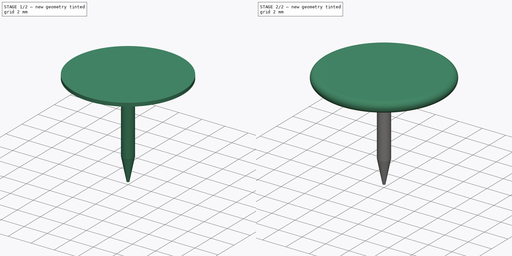
[diagram: build sequence overview — one tinted view per stage of 2, left to right]
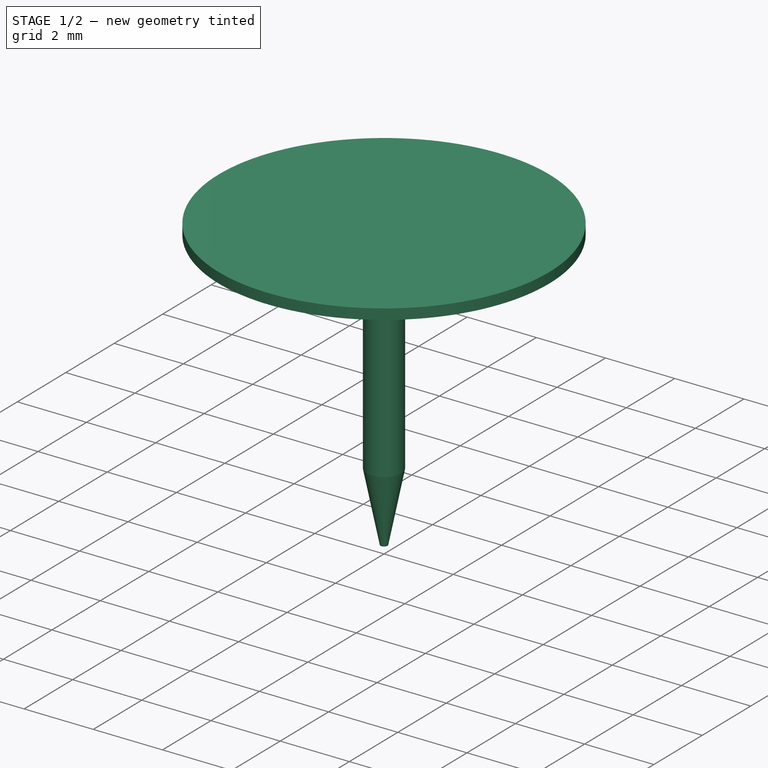
[diagram: stage 1 of 2 — iso view after this stage's code; geometry added in this stage tinted green]
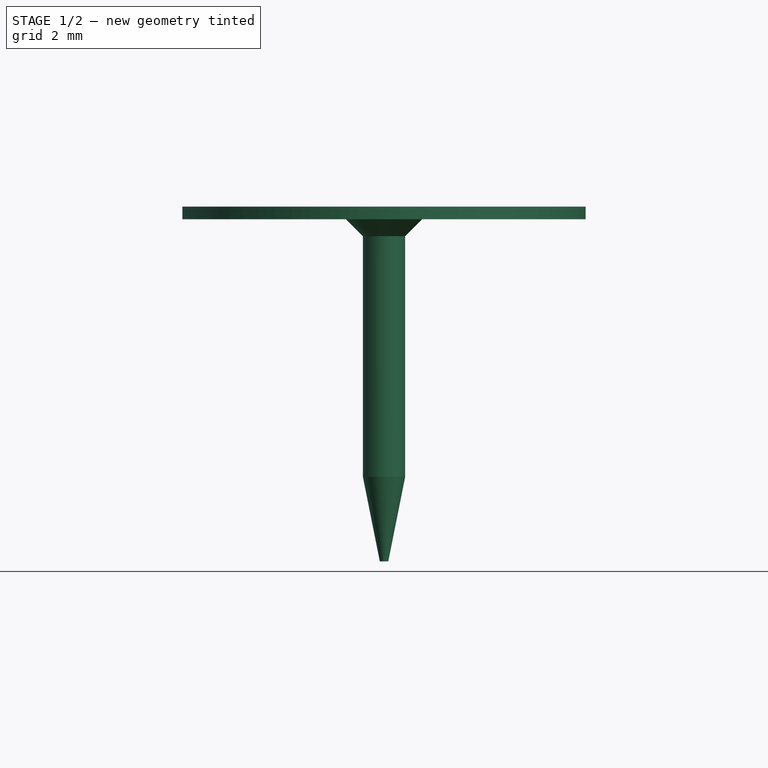
[diagram: stage 1 of 2 — front view after this stage's code; geometry added in this stage tinted green]
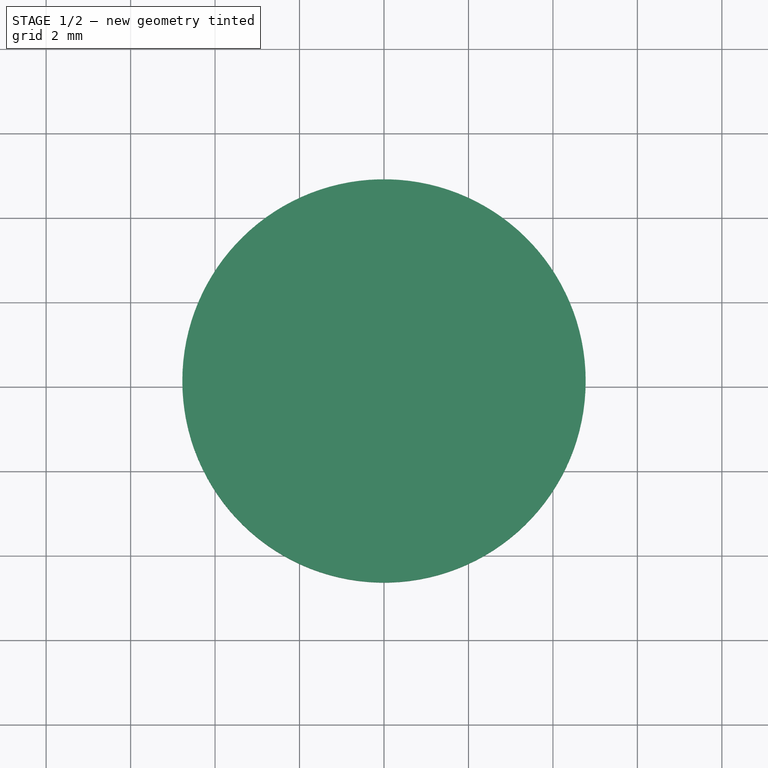
[diagram: stage 1 of 2 — top view after this stage's code; geometry added in this stage tinted green]
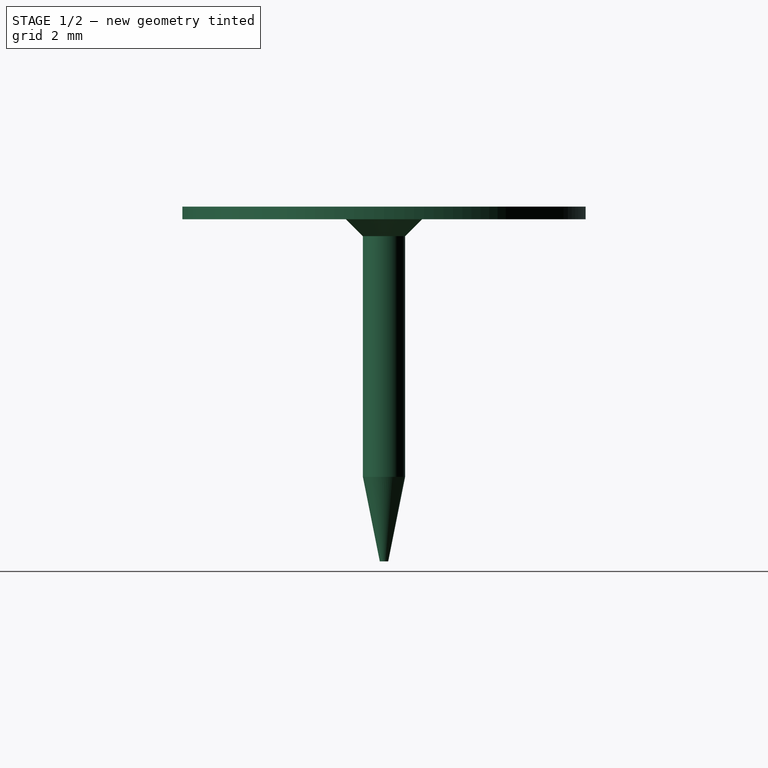
[diagram: stage 1 of 2 — right view after this stage's code; geometry added in this stage tinted green]
FCSTD DOCUMENT  (FreeCAD 0.17R13375 (Git))
Label: drawing-pin-with-cover
License: All rights reserved
LicenseURL: http://en.wikipedia.org/wiki/All_rights_reserved
objects: Sketcher::SketchObject×2, PartDesign::Revolution×2, PartDesign::Body×2, PartDesign::Chamfer×1, App::Part×1
note: 9 computed .brp shape members not serialized (recipe doc carries the construction recipe); baked Part::Feature solids carry a one-line shape summary decoded from their .brp

FEATURE [Sketcher::SketchObject] Sketch  label="body-sketch"
  MapMode = 5
  Placement = pos=(0,0,0) rot=(1,0,0;1.5708rad)
  expr: Constraints[5] = 9.5500000000000007 / 2
  sketch-geometry (7):
    g0: LineSegment StartX=0 StartY=0.3 StartZ=0 EndX=4.775 EndY=0.3 EndZ=0
    g1: LineSegment StartX=4.775 StartY=0.3 StartZ=0 EndX=4.775 EndY=0 EndZ=0
    g2: LineSegment StartX=0.5 StartY=-6.1 StartZ=0 EndX=0.5 EndY=0 EndZ=0
    g3: LineSegment StartX=0.5 StartY=0 StartZ=0 EndX=4.775 EndY=0 EndZ=0
    g4: LineSegment StartX=0 StartY=-8.1 StartZ=0 EndX=0 EndY=0.3 EndZ=0
    g5: LineSegment StartX=0 StartY=-8.1 StartZ=0 EndX=0.1 EndY=-8.1 EndZ=0
    g6: LineSegment StartX=0.1 StartY=-8.1 StartZ=0 EndX=0.5 EndY=-6.1 EndZ=0
  constraints (21):
    c: Coincident(g0,g1)
    c: Horizontal(g0)
    c: Vertical(g1)
    c: PointOnObject(g0,g-2)
    c: PointOnObject(g1,g-1)
    c: DistanceX(g0,g0) = 4.775
    c: DistanceY(g1,g1) = 0.3
    c: PointOnObject(g2,g-1)
    c: Vertical(g2)
    c: DistanceX(g-1,g2) = 0.5
    c: DistanceY(g4,g0) = 8.4
    c: DistanceY(g4,g2) = 2
    c: Coincident(g3,g2)
    c: Coincident(g3,g1)
    c: PointOnObject(g4,g-2)
    c: Coincident(g4,g0)
    c: Coincident(g4,g5)
    c: Coincident(g5,g6)
    c: Coincident(g6,g2)
    c: Horizontal(g5)
    c: DistanceX(g5,g5) = 0.1
FEATURE [PartDesign::Revolution] Revolution  label="drawing-pin-base-body"
  Angle = 360
  Axis = (0,0,1)
  Base = (0,0,0)
  Placement = pos=(0,0,0) rot=(1,0,0;1.5708rad)
  Profile = -> Sketch
  ReferenceAxis = -> Sketch [V_Axis]
  Refine = true
  Reversed = true
FEATURE [PartDesign::Body] Body001  label="Plastic-cover"
  Group = -> [Sketch001,Revolution001]
  Origin = -> Origin001
  Tip = -> Revolution001
FEATURE [PartDesign::Chamfer] Chamfer
  Base = -> Revolution [Edge4]
  BaseFeature = -> Revolution
  Placement = pos=(0,0,0) rot=(1,0,0;1.5708rad)
  Size = 0.4
FEATURE [PartDesign::Body] Body  label="drawing-pin-body"
  Group = -> [Sketch,Revolution,Chamfer]
  Origin = -> Origin
  Tip = -> Chamfer
FEATURE [App::Part] Part  label="Drawing-pin-with-cover"
  Group = -> [Body,Body001]
  License = CC BY 3.0
  LicenseURL = http://creativecommons.org/licenses/by/3.0/
  Origin = -> Origin002
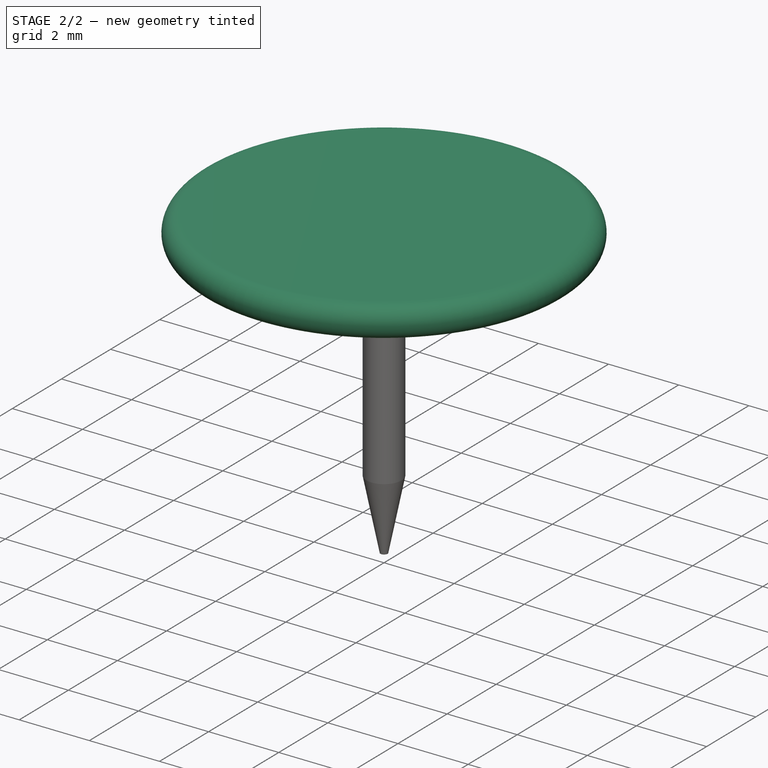
[diagram: stage 2 of 2 — iso view after this stage's code; geometry added in this stage tinted green]
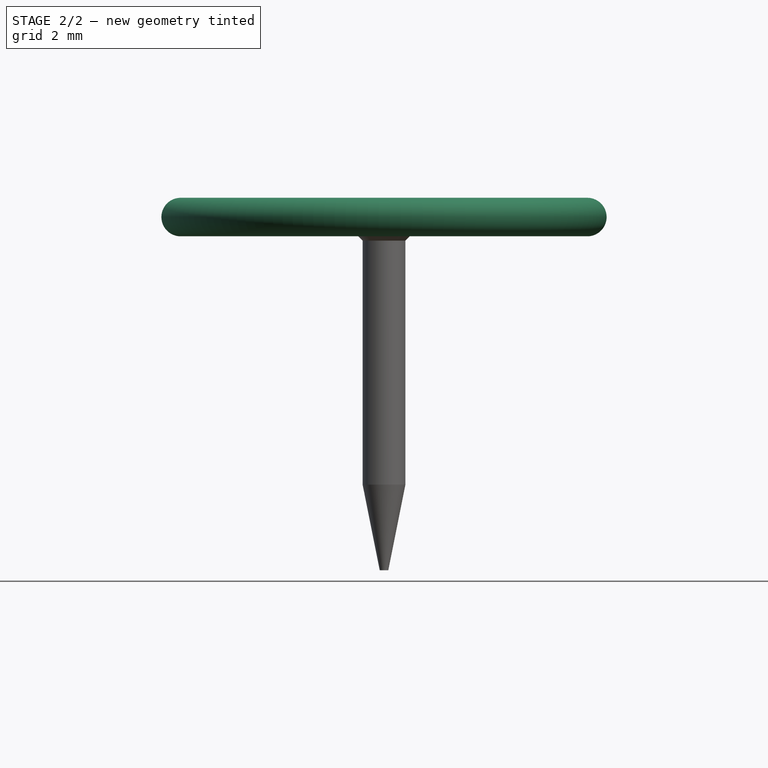
[diagram: stage 2 of 2 — front view after this stage's code; geometry added in this stage tinted green]
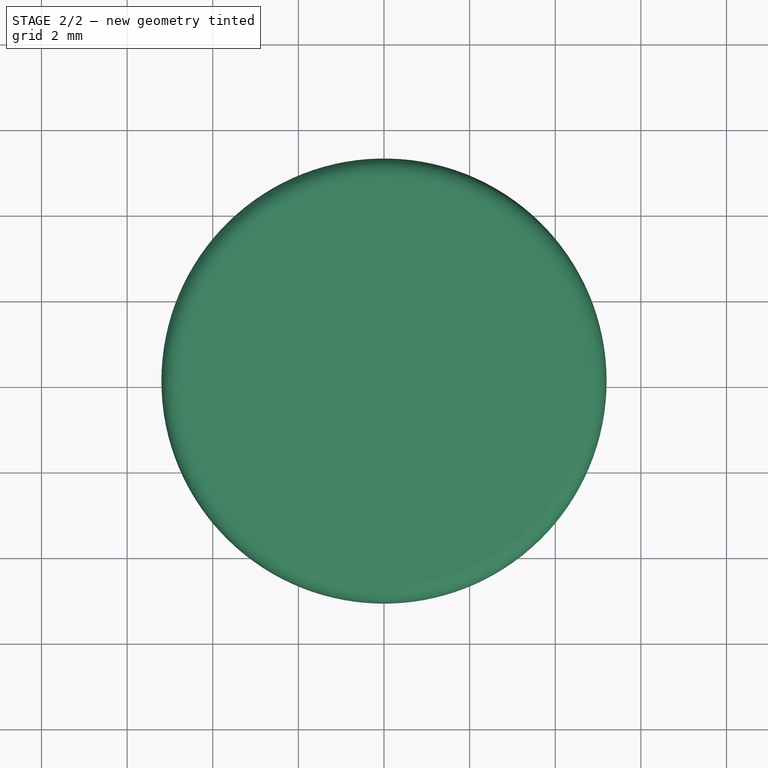
[diagram: stage 2 of 2 — top view after this stage's code; geometry added in this stage tinted green]
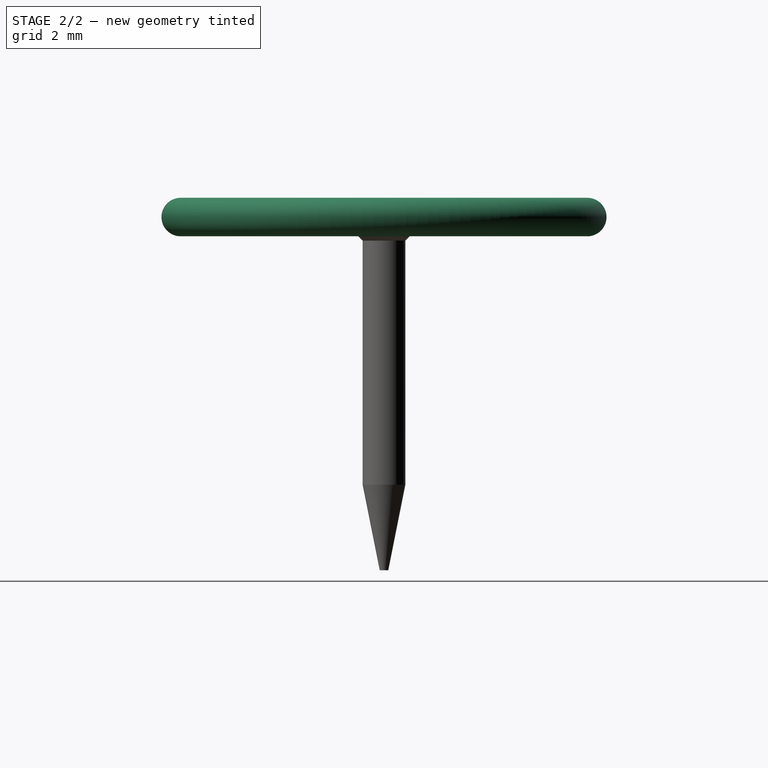
[diagram: stage 2 of 2 — right view after this stage's code; geometry added in this stage tinted green]
FEATURE [Sketcher::SketchObject] Sketch001  label="cover-sketch"
  MapMode = 5
  Placement = pos=(0,0,0) rot=(1,0,0;1.5708rad)
  expr: Constraints[18] = 9.5 / 2
  sketch-geometry (9):
    g0: LineSegment StartX=0 StartY=0.3 StartZ=0 EndX=4.75 EndY=0.3 EndZ=0
    g1: LineSegment StartX=4.75 StartY=0.3 StartZ=0 EndX=4.75 EndY=0 EndZ=0
    g2: LineSegment StartX=4.75 StartY=0 StartZ=0 EndX=4.45 EndY=0 EndZ=0
    g3: LineSegment StartX=4.45 StartY=0 StartZ=0 EndX=4.45 EndY=-0.3 EndZ=0
    g4: LineSegment StartX=4.45 StartY=-0.3 StartZ=0 EndX=4.75 EndY=-0.3 EndZ=0
    g5: LineSegment StartX=0 StartY=0.3 StartZ=0 EndX=0 EndY=0.6 EndZ=0
    g6: LineSegment StartX=0 StartY=0.6 StartZ=0 EndX=4.75 EndY=0.6 EndZ=0
    g7: LineSegment [constr] StartX=4.75 StartY=0.6 StartZ=0 EndX=4.75 EndY=-0.3 EndZ=0
    g8: ArcOfCircle CenterX=4.75 CenterY=0.15 CenterZ=0 NormalX=0 NormalY=0 NormalZ=1 AngleXU=0 Radius=0.45 StartAngle=4.71239 EndAngle=7.85398
  constraints (27):
    c: PointOnObject(g0,g-2)
    c: Horizontal(g0)
    c: Coincident(g0,g1)
    c: PointOnObject(g1,g-1)
    c: Vertical(g1)
    c: Coincident(g1,g2)
    c: PointOnObject(g2,g-1)
    c: Coincident(g2,g3)
    c: Vertical(g3)
    c: Coincident(g3,g4)
    c: Horizontal(g4)
    c: Coincident(g0,g5)
    c: PointOnObject(g5,g-2)
    c: Coincident(g5,g6)
    c: Horizontal(g6)
    c: Equal(g1,g5)
    c: Equal(g5,g3)
    c: DistanceY(g5,g5) = 0.3
    c: DistanceX(g0,g0) = 4.75
    c: Coincident(g7,g6)
    c: Vertical(g7)
    c: Coincident(g4,g7)
    c: PointOnObject(g6,g1)
    c: PointOnObject(g8,g1)
    c: Coincident(g8,g6)
    c: Coincident(g8,g4)
    c: Equal(g4,g1)
FEATURE [PartDesign::Revolution] Revolution001
  Angle = 360
  Axis = (0,0,1)
  Base = (0,0,0)
  Placement = pos=(0,0,0) rot=(1,0,0;1.5708rad)
  Profile = -> Sketch001
  ReferenceAxis = -> Sketch001 [V_Axis]
  Refine = true
  Reversed = true
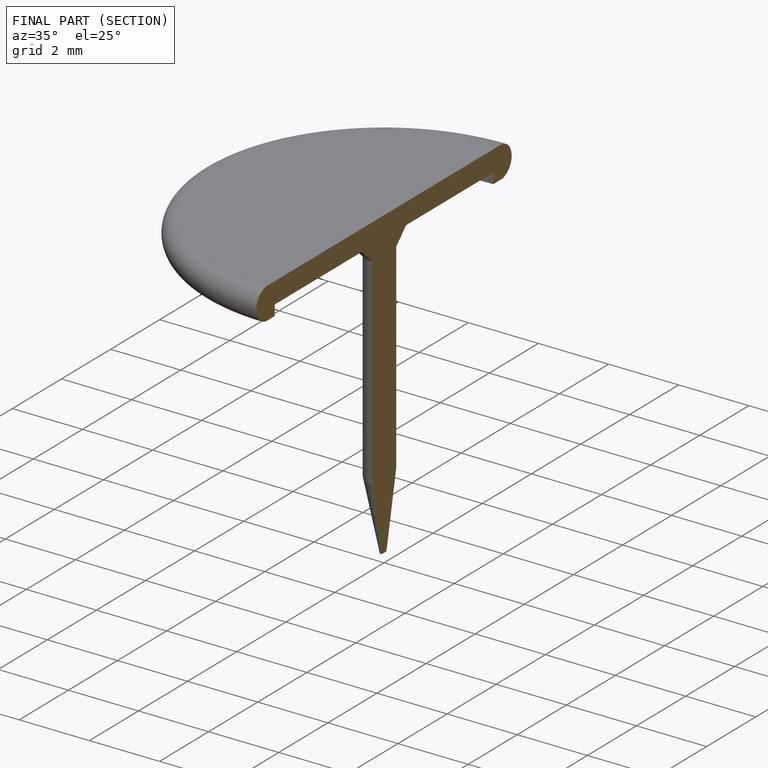
[diagram: finished part — half-section view (interior)]
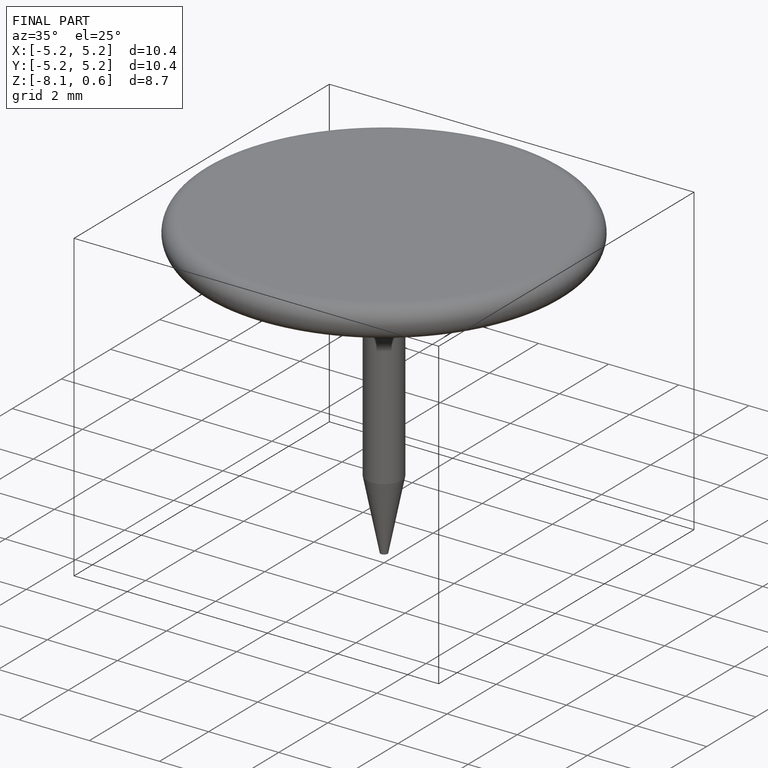
[diagram: finished part — iso view with bounding-box wireframe]
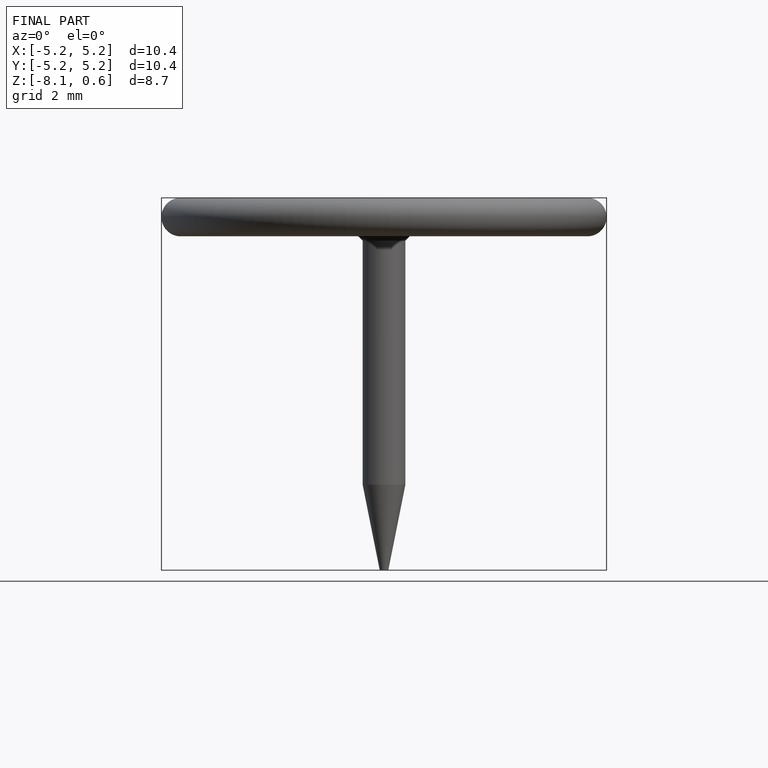
[diagram: finished part — front view with bounding-box wireframe]
